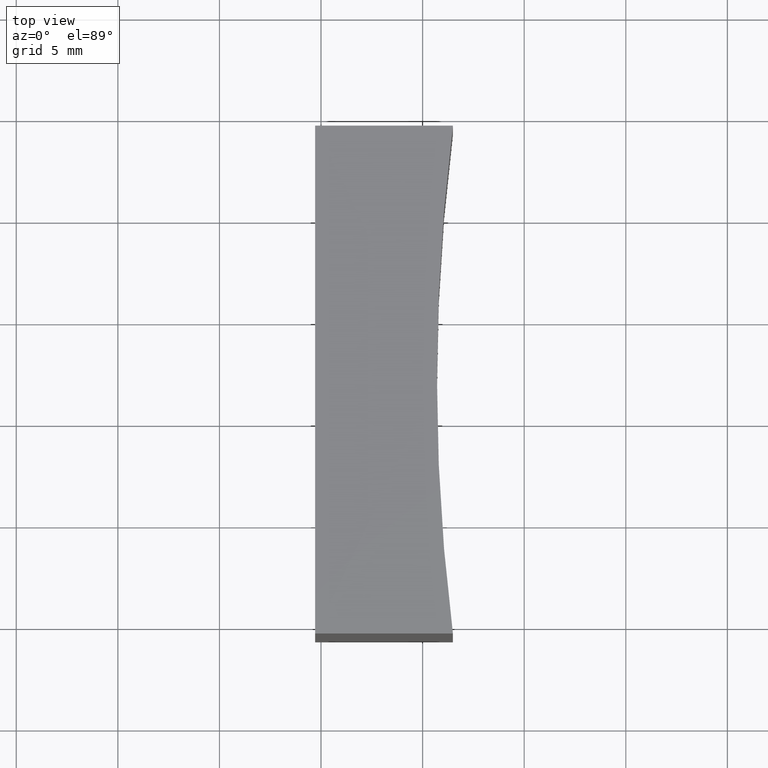
[diagram: clean part render]
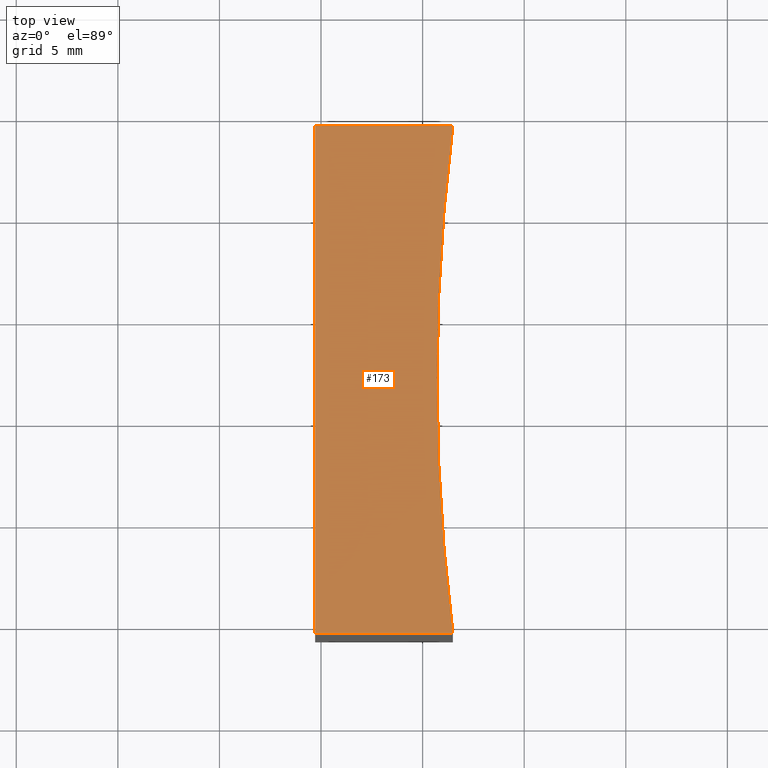
[diagram: same view with one face highlighted and labeled with its STEP entity id]
A machine part, top view. The second image highlights one B-rep face of the part: STEP entity #173.
In plain terms, the highlighted planar face has unit normal (0, 0, 1).
Its self-contained STEP definition (entity closure, byte-faithful):
#7 = CIRCLE ( 'NONE', #17, 99.99999999999997200 ) ;
#12 = LINE ( 'NONE', #184, #164 ) ;
#17 = AXIS2_PLACEMENT_3D ( 'NONE', #42, #166, #95 ) ;
#19 = LINE ( 'NONE', #109, #179 ) ;
#22 = CARTESIAN_POINT ( 'NONE',  ( 284.7071356312820900, 79.35792926776707600, 25.00000000000000000 ) ) ;
#25 = EDGE_CURVE ( 'NONE', #140, #218, #12, .T. ) ;
#27 = VECTOR ( 'NONE', #133, 1000.000000000000000 ) ;
#30 = DIRECTION ( 'NONE',  ( -0.0000000000000000000, -0.0000000000000000000, -1.000000000000000000 ) ) ;
#36 = EDGE_CURVE ( 'NONE', #218, #170, #19, .T. ) ;
#41 = DIRECTION ( 'NONE',  ( 0.0000000000000000000, 0.0000000000000000000, 1.000000000000000000 ) ) ;
#42 = CARTESIAN_POINT ( 'NONE',  ( 390.7071356610396700, 66.85792926776684900, 25.00000000000000000 ) ) ;
#43 = PLANE ( 'NONE',  #131 ) ;
#58 = DIRECTION ( 'NONE',  ( 1.000000000000000000, 0.0000000000000000000, -0.0000000000000000000 ) ) ;
#59 = CARTESIAN_POINT ( 'NONE',  ( 291.4914614961174900, 54.35792926776711900, 25.00000000000000000 ) ) ;
#65 = DIRECTION ( 'NONE',  ( 1.000000000000000000, 0.0000000000000000000, 0.0000000000000000000 ) ) ;
#69 = ORIENTED_EDGE ( 'NONE', *, *, #142, .T. ) ;
#72 = VERTEX_POINT ( 'NONE', #132 ) ;
#82 = VERTEX_POINT ( 'NONE', #150 ) ;
#84 = CARTESIAN_POINT ( 'NONE',  ( 284.7071356312820900, 54.35792926776707600, 25.00000000000000000 ) ) ;
#91 = CIRCLE ( 'NONE', #106, 99.99999999999997200 ) ;
#95 = DIRECTION ( 'NONE',  ( 1.000000000000000000, 0.0000000000000000000, 0.0000000000000000000 ) ) ;
#106 = AXIS2_PLACEMENT_3D ( 'NONE', #169, #30, #65 ) ;
#109 = CARTESIAN_POINT ( 'NONE',  ( 291.4914614961174900, 54.35792926776707600, 25.00000000000000000 ) ) ;
#128 = DIRECTION ( 'NONE',  ( 1.000000000000000000, -0.0000000000000000000, -0.0000000000000000000 ) ) ;
#130 = FACE_OUTER_BOUND ( 'NONE', #141, .T. ) ;
#131 = AXIS2_PLACEMENT_3D ( 'NONE', #148, #41, #58 ) ;
#132 = CARTESIAN_POINT ( 'NONE',  ( 291.4914614961175500, 79.35792926776707600, 25.00000000000000000 ) ) ;
#133 = DIRECTION ( 'NONE',  ( -1.000000000000000000, -0.0000000000000000000, -0.0000000000000000000 ) ) ;
#135 = CARTESIAN_POINT ( 'NONE',  ( 284.7071356312820900, 79.35792926776707600, 25.00000000000000000 ) ) ;
#140 = VERTEX_POINT ( 'NONE', #135 ) ;
#141 = EDGE_LOOP ( 'NONE', ( #147, #160, #155, #221, #69 ) ) ;
#142 = EDGE_CURVE ( 'NONE', #72, #140, #189, .T. ) ;
#147 = ORIENTED_EDGE ( 'NONE', *, *, #25, .T. ) ;
#148 = CARTESIAN_POINT ( 'NONE',  ( 390.7071356610396700, 66.85792926776684900, 25.00000000000000000 ) ) ;
#150 = CARTESIAN_POINT ( 'NONE',  ( 290.7071356610396700, 66.85792926776684900, 25.00000000000000000 ) ) ;
#155 = ORIENTED_EDGE ( 'NONE', *, *, #215, .T. ) ;
#160 = ORIENTED_EDGE ( 'NONE', *, *, #36, .T. ) ;
#164 = VECTOR ( 'NONE', #183, 1000.000000000000000 ) ;
#166 = DIRECTION ( 'NONE',  ( -0.0000000000000000000, -0.0000000000000000000, -1.000000000000000000 ) ) ;
#169 = CARTESIAN_POINT ( 'NONE',  ( 390.7071356610396700, 66.85792926776684900, 25.00000000000000000 ) ) ;
#170 = VERTEX_POINT ( 'NONE', #59 ) ;
#173 = ADVANCED_FACE ( 'NONE', ( #130 ), #43, .T. ) ;
#179 = VECTOR ( 'NONE', #128, 1000.000000000000000 ) ;
#182 = EDGE_CURVE ( 'NONE', #82, #72, #7, .T. ) ;
#183 = DIRECTION ( 'NONE',  ( -0.0000000000000000000, -1.000000000000000000, -0.0000000000000000000 ) ) ;
#184 = CARTESIAN_POINT ( 'NONE',  ( 284.7071356312820900, 54.35792926776707600, 25.00000000000000000 ) ) ;
#189 = LINE ( 'NONE', #22, #27 ) ;
#215 = EDGE_CURVE ( 'NONE', #170, #82, #91, .T. ) ;
#218 = VERTEX_POINT ( 'NONE', #84 ) ;
#221 = ORIENTED_EDGE ( 'NONE', *, *, #182, .T. ) ;